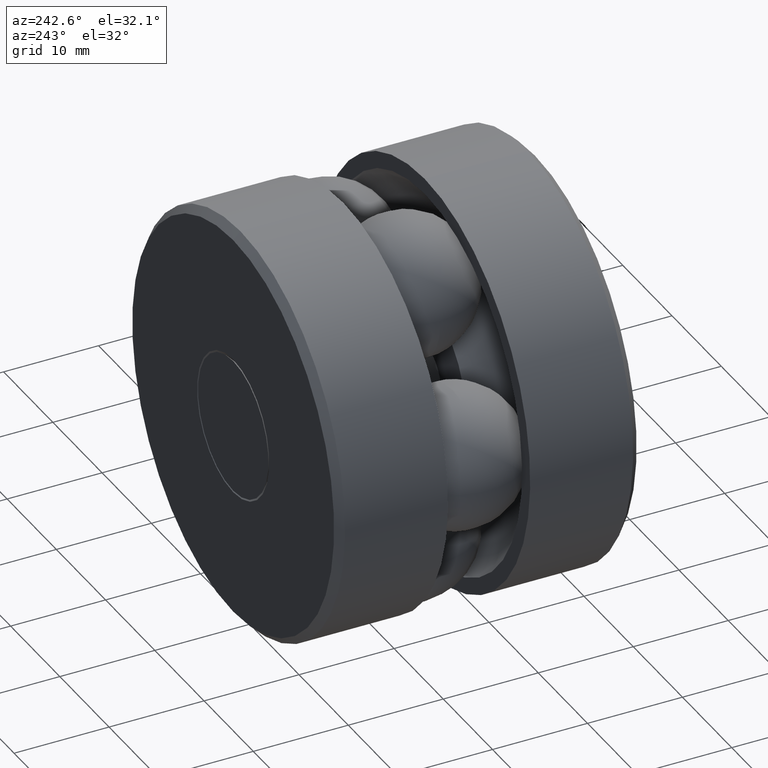
[diagram: clean part render]
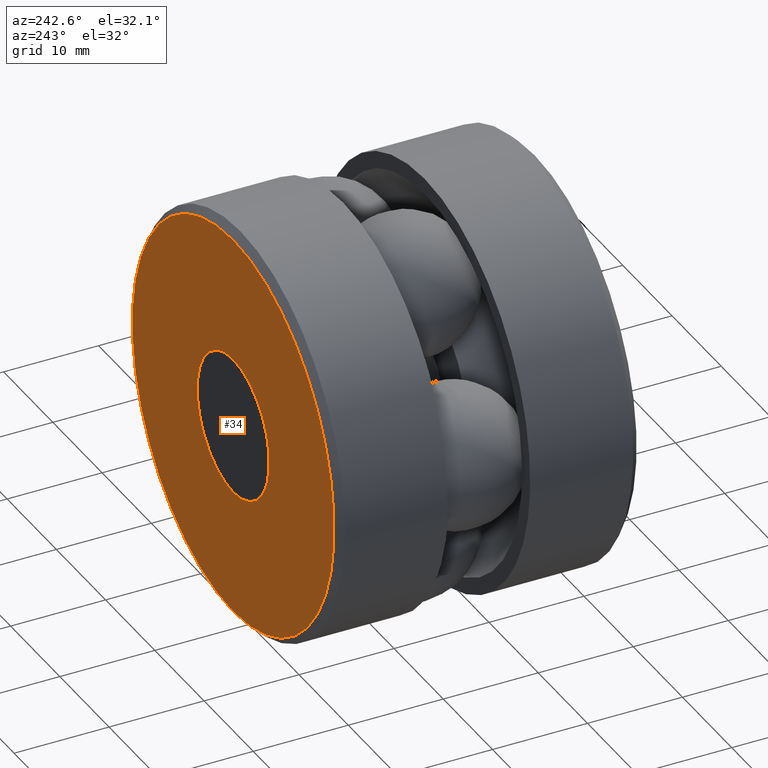
[diagram: same view with one face highlighted and labeled with its STEP entity id]
A machine part, auxiliary view. The second image highlights one B-rep face of the part: STEP entity #34.
In plain terms, the highlighted planar face has unit normal (-0, 1, 0).
Its self-contained STEP definition (entity closure, byte-faithful):
#23 = FACE_OUTER_BOUND ( 'NONE', #294, .T. ) ;
#30 = DIRECTION ( 'NONE',  ( 0.0000000000000000000, 0.0000000000000000000, 1.000000000000000000 ) ) ;
#34 = ADVANCED_FACE ( 'NONE', ( #23, #132 ), #56, .T. ) ;
#36 = DIRECTION ( 'NONE',  ( -0.0000000000000000000, 1.000000000000000000, -0.0000000000000000000 ) ) ;
#44 = CARTESIAN_POINT ( 'NONE',  ( 0.0000000000000000000, 1.250000000000000000, 0.0000000000000000000 ) ) ;
#56 = PLANE ( 'NONE',  #218 ) ;
#63 = CIRCLE ( 'NONE', #540, 0.2883210678118640100 ) ;
#72 = EDGE_LOOP ( 'NONE', ( #153 ) ) ;
#99 = CARTESIAN_POINT ( 'NONE',  ( 0.0000000000000000000, 1.250000000000000000, 0.2883210678118640100 ) ) ;
#130 = EDGE_CURVE ( 'NONE', #272, #272, #454, .T. ) ;
#132 = FACE_BOUND ( 'NONE', #72, .T. ) ;
#150 = CARTESIAN_POINT ( 'NONE',  ( 0.0000000000000000000, 1.250000000000000000, 0.8067500000000003000 ) ) ;
#153 = ORIENTED_EDGE ( 'NONE', *, *, #230, .F. ) ;
#218 = AXIS2_PLACEMENT_3D ( 'NONE', #324, #344, #510 ) ;
#230 = EDGE_CURVE ( 'NONE', #464, #464, #63, .T. ) ;
#266 = DIRECTION ( 'NONE',  ( 0.0000000000000000000, 0.0000000000000000000, 1.000000000000000000 ) ) ;
#272 = VERTEX_POINT ( 'NONE', #150 ) ;
#294 = EDGE_LOOP ( 'NONE', ( #398 ) ) ;
#324 = CARTESIAN_POINT ( 'NONE',  ( -0.2883210678118640100, 1.250000000000000000, 0.0000000000000000000 ) ) ;
#331 = AXIS2_PLACEMENT_3D ( 'NONE', #422, #406, #266 ) ;
#344 = DIRECTION ( 'NONE',  ( -0.0000000000000000000, 1.000000000000000000, 0.0000000000000000000 ) ) ;
#398 = ORIENTED_EDGE ( 'NONE', *, *, #130, .T. ) ;
#406 = DIRECTION ( 'NONE',  ( -0.0000000000000000000, 1.000000000000000000, -0.0000000000000000000 ) ) ;
#422 = CARTESIAN_POINT ( 'NONE',  ( 0.0000000000000000000, 1.250000000000000000, 0.0000000000000000000 ) ) ;
#454 = CIRCLE ( 'NONE', #331, 0.8067500000000003000 ) ;
#464 = VERTEX_POINT ( 'NONE', #99 ) ;
#510 = DIRECTION ( 'NONE',  ( 0.0000000000000000000, 0.0000000000000000000, 1.000000000000000000 ) ) ;
#540 = AXIS2_PLACEMENT_3D ( 'NONE', #44, #36, #30 ) ;